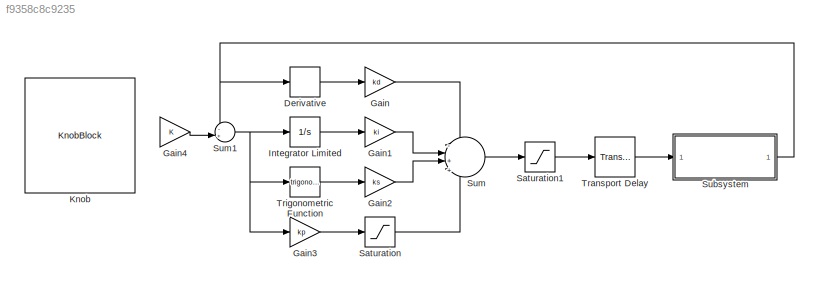
MODEL slx_f9358c8c9235
KIND model
CONFIG AbsTol = auto
CONFIG EnableMultiTasking = off
CONFIG FixedStep = auto
CONFIG MaxStep = auto
CONFIG MinStep = auto
CONFIG RelTol = 1e-3
CONFIG SampleTimeConstraint = Unconstrained
CONFIG SolverName = VariableStepAuto
CONFIG StartTime = 0.0
CONFIG StopTime = 10.0
WORKSPACE source: mxarray member
WORKSPACE kd: Simulink.Parameter (value not decoded)
WORKSPACE ki: Simulink.Parameter (value not decoded)
WORKSPACE kp: Simulink.Parameter (value not decoded)
WORKSPACE ks: Simulink.Parameter (value not decoded)
BLOCK [Derivative] Derivative
BLOCK [Gain] Gain
  Gain = kd
BLOCK [Gain] Gain1
  Gain = ki
BLOCK [Gain] Gain2
  Gain = ks
BLOCK [Gain] Gain3
  Gain = kp
BLOCK [Gain] Gain4
BLOCK [Integrator] Integrator Limited
  LimitOutput = on
  LowerSaturationLimit = -0.2
  Ports = [1, 1]
  UpperSaturationLimit = 0.2
BLOCK [KnobBlock] Knob
  LabelPosition = Hide
  ScaleMax = 180
BLOCK [Saturate] Saturation
BLOCK [Saturate] Saturation1
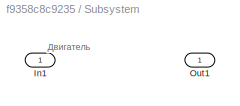
BLOCK [SubSystem] Subsystem
  Ports = [1, 1]
  RequestExecContextInheritance = off
BLOCK [Inport] Subsystem/In1
BLOCK [Outport] Subsystem/Out1
BLOCK [Sum] Sum
  Inputs = -|+|+|+
  Ports = [4, 1]
BLOCK [Sum] Sum1
  Inputs = -+|
  Ports = [2, 1]
BLOCK [TransportDelay] Transport Delay
  Ports = [1, 1]
BLOCK [Trigonometry] Trigonometric Function
  Ports = [1, 1]
ANNOTATION Subsystem: Двигатель
LINE Derivative:1 -> Gain:1
LINE Gain1:1 -> Sum:2
LINE Gain2:1 -> Sum:3
LINE Gain3:1 -> Saturation:1
LINE Gain4:1 -> Sum1:2
LINE Gain:1 -> Sum:1
LINE Integrator Limited:1 -> Gain1:1
LINE Saturation1:1 -> Transport Delay:1
LINE Saturation:1 -> Sum:4
NET Subsystem:1 -> Derivative:1, Sum1:1
NET Sum1:1 -> Gain3:1, Integrator Limited:1, Trigonometric Function:1
LINE Sum:1 -> Saturation1:1
LINE Transport Delay:1 -> Subsystem:1
LINE Trigonometric Function:1 -> Gain2:1
note: NET lines group one-source signal fan-out (src -> all destinations, sorted); 1:1 wires keep LINE
